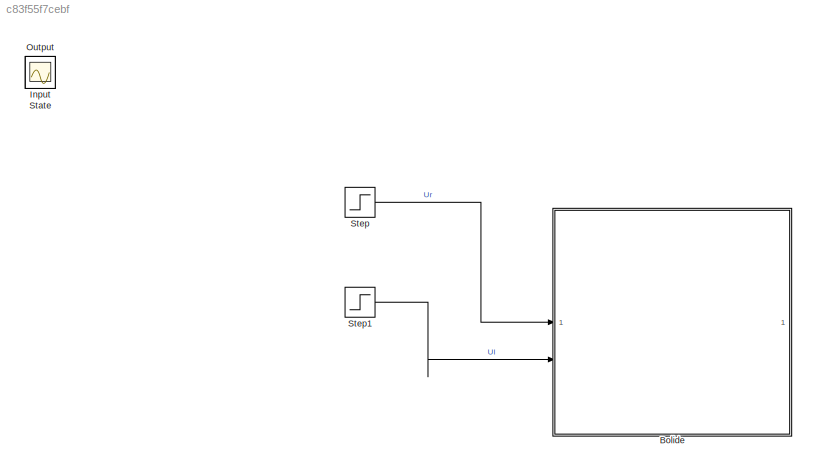
MODEL slx_c83f55f7cebf
KIND model
CONFIG AbsTol = auto
CONFIG EnableMultiTasking = off
CONFIG FixedStep = auto
CONFIG MaxStep = auto
CONFIG MinStep = auto
CONFIG RelTol = 1e-3
CONFIG SampleTimeConstraint = Unconstrained
CONFIG SolverName = VariableStepAuto
CONFIG StartTime = 0.0
CONFIG StopTime = 7
WORKSPACE source: MATLAB code (in-file)
WORKSPACE mw = 0.1
WORKSPACE mb = 1
WORKSPACE M = 1.2
WORKSPACE rho = 0.07
WORKSPACE l = 0.02
WORKSPACE d = 0.015
WORKSPACE L = 1e-3  (= 0.001)
WORKSPACE R = 1e-1  (= 0.1)
WORKSPACE k = 1e-2  (= 0.01)
WORKSPACE Iwy = 2.45e-4  (= 0.000245)
WORKSPACE Ipsi = 1.53e-2  (= 0.0153)
WORKSPACE beta = (M + 2*Iwy/rho^2)  (= 1.3)
WORKSPACE gamma = Ipsi + mb*d^2  (= 0.015525)
WORKSPACE uref = 1
WORKSPACE psiref = 0
WORKSPACE code: Usbar = min([2*k/rho*uref; 12]); % should not be >12V
WORKSPACE Urbar = Usbar/2
WORKSPACE Ulbar = Usbar/2
WORKSPACE pbar = 0
WORKSPACE ubar = uref  (= 1)
WORKSPACE psibar = psiref  (= 0)
WORKSPACE vbar = 0
WORKSPACE irbar = 0
WORKSPACE ilbar = 0
WORKSPACE xbar = pbar  (= 0)
WORKSPACE ybar = 0
WORKSPACE code: statebar = [pbar; ubar; psibar; vbar; irbar; ilbar; xbar; ybar];
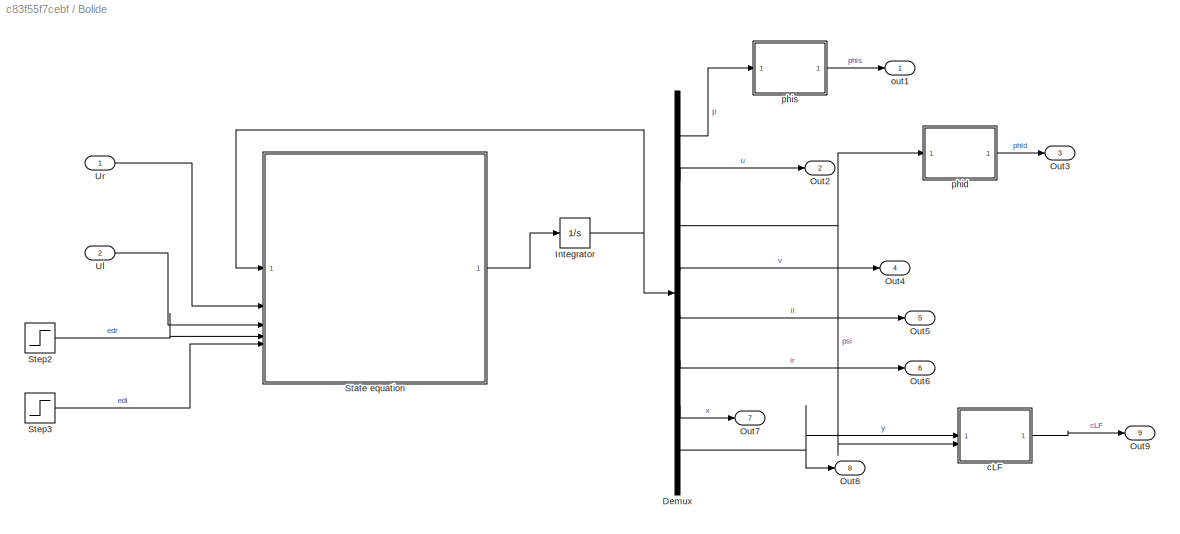
BLOCK [SubSystem] Bolide
BLOCK [Demux] Bolide/Demux
  Outputs = 8
BLOCK [Integrator] Bolide/Integrator
  InitialCondition = statebar
BLOCK [Outport] Bolide/Out2
  Port = 2
BLOCK [Outport] Bolide/Out3
  Port = 3
BLOCK [Outport] Bolide/Out4
  Port = 4
BLOCK [Outport] Bolide/Out5
  Port = 5
BLOCK [Outport] Bolide/Out6
  Port = 6
BLOCK [Outport] Bolide/Out7
  Port = 7
BLOCK [Outport] Bolide/Out8
  Port = 8
BLOCK [Outport] Bolide/Out9
  Port = 9
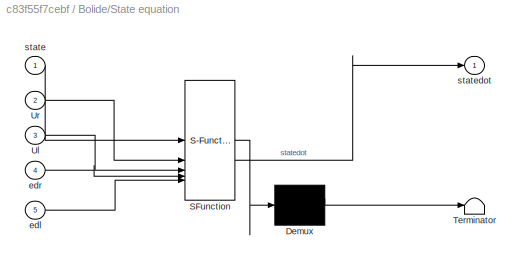
BLOCK [SubSystem] Bolide/State equation
  ErrorFcn = Stateflow.Translate.translate
  PermitHierarchicalResolution = ExplicitOnly
  SFBlockType = MATLAB Function
  TreatAsAtomicUnit = on
BLOCK [Demux] Bolide/State equation/ Demux 
  Outputs = 1
BLOCK [S-Function] Bolide/State equation/ SFunction 
  EnableBusSupport = on
  FunctionName = sf_sfun
  Parameters = Ipsi,Iwy,L,M,R,beta,d,gamma,k,l,mb,rho
  PortCounts = [5 2]
  SFcnIsStateOwnerBlock = off
  SFunctionDeploymentMode = off
  Tag = Stateflow S-Function 2
BLOCK [Terminator] Bolide/State equation/ Terminator 
BLOCK [Inport] Bolide/State equation/Ul
  Port = 3
BLOCK [Inport] Bolide/State equation/Ur
  Port = 2
BLOCK [Inport] Bolide/State equation/edl
  Port = 5
BLOCK [Inport] Bolide/State equation/edr
  Port = 4
BLOCK [Inport] Bolide/State equation/state
BLOCK [Outport] Bolide/State equation/statedot
BLOCK [Step] Bolide/Step2
  After = 0
  SampleTime = 0
BLOCK [Step] Bolide/Step3
  After = 0
  SampleTime = 0
BLOCK [Inport] Bolide/Ul
  Port = 2
BLOCK [Inport] Bolide/Ur
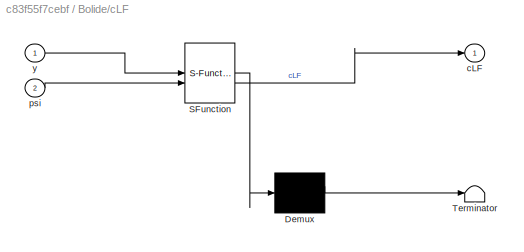
BLOCK [SubSystem] Bolide/cLF
  ErrorFcn = Stateflow.Translate.translate
  PermitHierarchicalResolution = ExplicitOnly
  SFBlockType = MATLAB Function
  TreatAsAtomicUnit = on
BLOCK [Demux] Bolide/cLF/ Demux 
  Outputs = 1
BLOCK [S-Function] Bolide/cLF/ SFunction 
  EnableBusSupport = on
  FunctionName = sf_sfun
  Parameters = psibar,ybar
  PortCounts = [2 2]
  SFcnIsStateOwnerBlock = off
  SFunctionDeploymentMode = off
  Tag = Stateflow S-Function 1
BLOCK [Terminator] Bolide/cLF/ Terminator 
BLOCK [Outport] Bolide/cLF/cLF
BLOCK [Inport] Bolide/cLF/psi
  Port = 2
BLOCK [Inport] Bolide/cLF/y
BLOCK [Outport] Bolide/out1
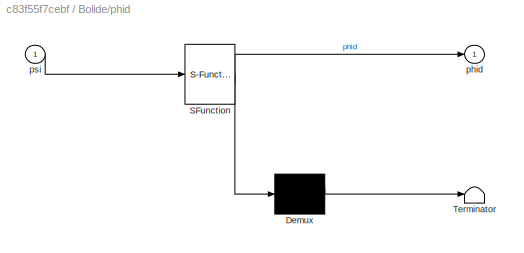
BLOCK [SubSystem] Bolide/phid
  ErrorFcn = Stateflow.Translate.translate
  PermitHierarchicalResolution = ExplicitOnly
  SFBlockType = MATLAB Function
  TreatAsAtomicUnit = on
BLOCK [Demux] Bolide/phid/ Demux 
  Outputs = 1
BLOCK [S-Function] Bolide/phid/ SFunction 
  EnableBusSupport = on
  FunctionName = sf_sfun
  Parameters = l,rho
  PortCounts = [1 2]
  SFcnIsStateOwnerBlock = off
  SFunctionDeploymentMode = off
  Tag = Stateflow S-Function 3
BLOCK [Terminator] Bolide/phid/ Terminator 
BLOCK [Outport] Bolide/phid/phid
BLOCK [Inport] Bolide/phid/psi
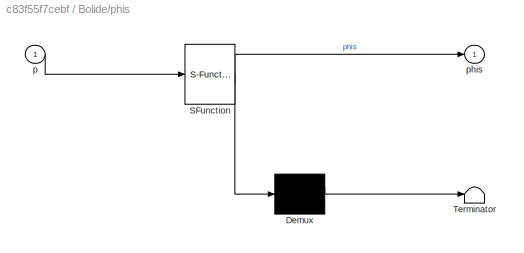
BLOCK [SubSystem] Bolide/phis
  ErrorFcn = Stateflow.Translate.translate
  PermitHierarchicalResolution = ExplicitOnly
  SFBlockType = MATLAB Function
  TreatAsAtomicUnit = on
BLOCK [Demux] Bolide/phis/ Demux 
  Outputs = 1
BLOCK [S-Function] Bolide/phis/ SFunction 
  EnableBusSupport = on
  FunctionName = sf_sfun
  Parameters = rho
  PortCounts = [1 2]
  SFcnIsStateOwnerBlock = off
  SFunctionDeploymentMode = off
  Tag = Stateflow S-Function 4
BLOCK [Terminator] Bolide/phis/ Terminator 
BLOCK [Inport] Bolide/phis/p
BLOCK [Outport] Bolide/phis/phis
BLOCK [Scope] Input
  Floating = off
  IOType = viewer
  NumInputPorts = 1
  ScopeSpecificationString = Simulink.scopes.TimeScopeBlockCfg('CurrentConfiguration', extmgr.ConfigurationSet(extmgr.Configuration('Core','General UI',true),extmgr.Configuration('Core','Source UI',true),extmgr.Configuration('Sources','WiredSimulink',true,'DataLoggingVariableName','ScopeData1'),extmgr.Configuration('Visuals','Time Domain',true,'SerializedDisplays',{struct('MinYLimReal','0.04286','MaxYLimReal','0.24286','YLabe...<+3446ch>
BLOCK [Scope] Output
  Floating = off
  IOType = viewer
  NumInputPorts = 1
  ScopeSpecificationString = Simulink.scopes.TimeScopeBlockCfg('CurrentConfiguration', extmgr.ConfigurationSet(extmgr.Configuration('Core','General UI',true),extmgr.Configuration('Core','Source UI',true),extmgr.Configuration('Sources','WiredSimulink',true,'DataLoggingVariableName','ScopeData1'),extmgr.Configuration('Visuals','Time Domain',true,'SerializedDisplays',{struct('MinYLimReal','-25.00000','MaxYLimReal','225.00000','Y...<+2079ch>
BLOCK [Scope] State
  Floating = off
  IOType = viewer
  NumInputPorts = 1
  ScopeSpecificationString = Simulink.scopes.TimeScopeBlockCfg('CurrentConfiguration', extmgr.ConfigurationSet(extmgr.Configuration('Core','General UI',true),extmgr.Configuration('Core','Source UI',true),extmgr.Configuration('Sources','WiredSimulink',true),extmgr.Configuration('Visuals','Time Domain',true,'SerializedDisplays',{struct('MinYLimReal','-0.875','MaxYLimReal','7.875','YLabelReal','','MinYLimMag','0.00000','MaxYLimM...<+6784ch>
BLOCK [Step] Step
  After = Urbar
  Before = Urbar
  SampleTime = 0
  Time = 5
BLOCK [Step] Step1
  After = Ulbar
  Before = Ulbar
  SampleTime = 0
  Time = 2
LINE Bolide/Demux:1 -> Bolide/phis:1
LINE Bolide/Demux:2 -> Bolide/Out2:1
NET Bolide/Demux:3 -> Bolide/cLF:2, Bolide/phid:1
LINE Bolide/Demux:4 -> Bolide/Out4:1
LINE Bolide/Demux:5 -> Bolide/Out5:1
LINE Bolide/Demux:6 -> Bolide/Out6:1
LINE Bolide/Demux:7 -> Bolide/Out7:1
NET Bolide/Demux:8 -> Bolide/Out8:1, Bolide/cLF:1
NET Bolide/Integrator:1 -> Bolide/Demux:1, Bolide/State equation:1
LINE Bolide/State equation:1 -> Bolide/Integrator:1
LINE Bolide/Step2:1 -> Bolide/State equation:4
LINE Bolide/Step3:1 -> Bolide/State equation:5
LINE Bolide/Ul:1 -> Bolide/State equation:3
LINE Bolide/Ur:1 -> Bolide/State equation:2
LINE Bolide/cLF:1 -> Bolide/Out9:1
LINE Bolide/phid:1 -> Bolide/Out3:1
LINE Bolide/phis:1 -> Bolide/out1:1
LINE Step1:1 -> Bolide:2
LINE Step:1 -> Bolide:1
note: NET lines group one-source signal fan-out (src -> all destinations, sorted); 1:1 wires keep LINE
CHART Bolide/cLF states=1 transitions=1
  STATE_LABEL 'eML_blk_kernel()'
  STATE_LABEL 'SCRIPT:\nfunction cLF = fcn(y, psi, psibar, ybar)\n\ncLF = y/cos(psi - psibar);\n'
CHART Bolide/State equation states=1 transitions=1
  STATE_LABEL 'eML_blk_kernel()'
  STATE_LABEL 'SCRIPT:\nfunction statedot = fcn(state,Ur, Ul, edr, edl, M, rho, l, Iwy, Ipsi, d, L, R, k, mb, beta, gamma)\n% ed est l\'entrée de perturbation, != d (distance AC)\n% Model parameters M,Ipsi,d,L,R,k defined in "Model Explorer/Matlab Code"\n\np = state(1); % intégrale temporelle de u, distance parcourue\nu = state(2);\npsi = state(3);\nv = state(4); % psidot\nir = state(5); % Intensité à gauche\nil = state(6)...<+517ch>'
CHART Bolide/phid states=1 transitions=1
  STATE_LABEL 'eML_blk_kernel()'
  STATE_LABEL 'SCRIPT:\nfunction phid = fcn(psi, rho, l)\n\nphid = l/rho*psi;\n'
CHART Bolide/phis states=1 transitions=1
  STATE_LABEL 'eML_blk_kernel()'
  STATE_LABEL 'SCRIPT:\nfunction phis = fcn(rho,p)\n\nphis = 2/rho*p;\n'
CHART  states=0 transitions=0
CHART  states=0 transitions=0
CHART  states=0 transitions=0
CHART  states=0 transitions=0
